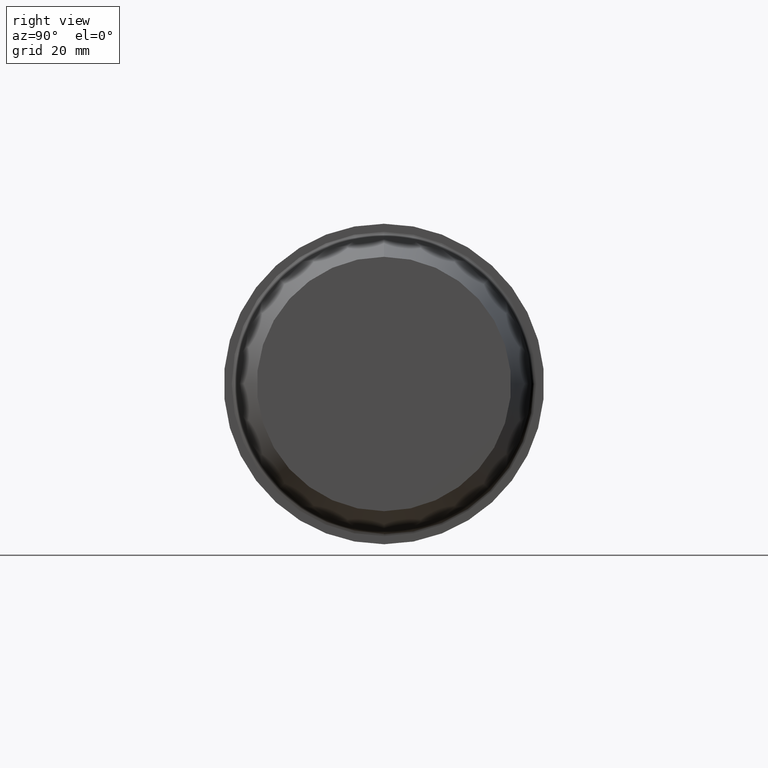
[diagram: clean part render]
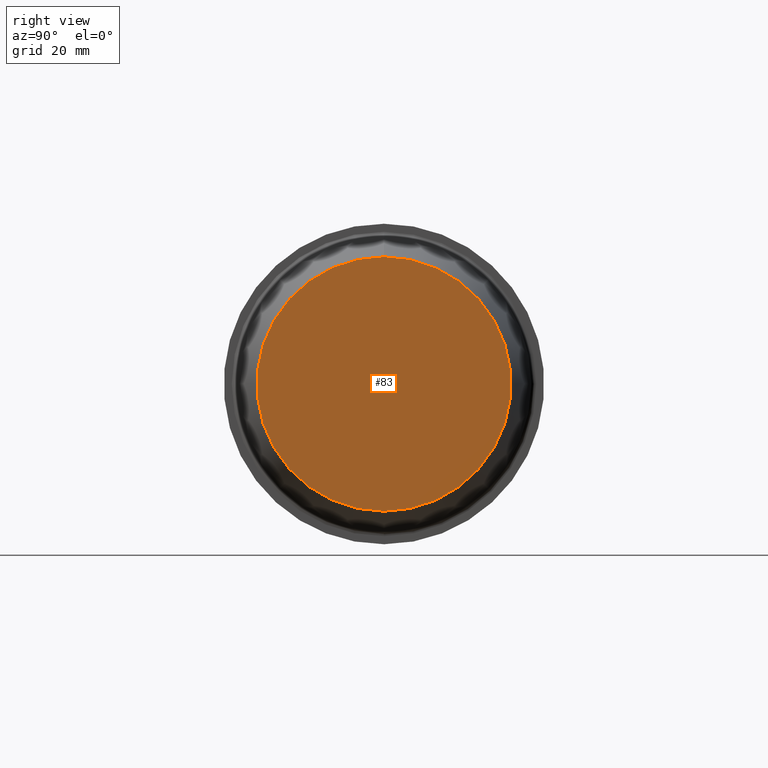
[diagram: same view with one face highlighted and labeled with its STEP entity id]
A machine part, right view. The second image highlights one B-rep face of the part: STEP entity #83.
In plain terms, the highlighted planar face has unit normal (-1, 0, 0).
Its self-contained STEP definition (entity closure, byte-faithful):
#2 = CARTESIAN_POINT ( 'NONE',  ( 74.99999992349999900, 0.000000000000000000, 0.000000000000000000 ) ) ;
#22 = AXIS2_PLACEMENT_3D ( 'NONE', #69, #124, #150 ) ;
#66 = DIRECTION ( 'NONE',  ( -1.000000000000000000, 0.000000000000000000, 0.000000000000000000 ) ) ;
#69 = CARTESIAN_POINT ( 'NONE',  ( 74.99999992349999900, 0.000000000000000000, 0.000000000000000000 ) ) ;
#83 = ADVANCED_FACE ( 'NONE', ( #267 ), #146, .F. ) ;
#90 = DIRECTION ( 'NONE',  ( 0.000000000000000000, 0.000000000000000000, 1.000000000000000000 ) ) ;
#95 = DIRECTION ( 'NONE',  ( -1.000000000000000000, 0.000000000000000000, 0.000000000000000000 ) ) ;
#107 = CIRCLE ( 'NONE', #22, 24.99999997449999967 ) ;
#116 = ORIENTED_EDGE ( 'NONE', *, *, #185, .F. ) ;
#120 = EDGE_CURVE ( 'NONE', #189, #379, #107, .T. ) ;
#124 = DIRECTION ( 'NONE',  ( -1.000000000000000000, 0.000000000000000000, 0.000000000000000000 ) ) ;
#146 = PLANE ( 'NONE',  #313 ) ;
#150 = DIRECTION ( 'NONE',  ( 0.000000000000000000, 0.000000000000000000, 1.000000000000000000 ) ) ;
#166 = EDGE_LOOP ( 'NONE', ( #281, #116 ) ) ;
#185 = EDGE_CURVE ( 'NONE', #379, #189, #354, .T. ) ;
#189 = VERTEX_POINT ( 'NONE', #349 ) ;
#197 = CARTESIAN_POINT ( 'NONE',  ( 74.99999992349999900, 0.000000000000000000, 0.000000000000000000 ) ) ;
#221 = AXIS2_PLACEMENT_3D ( 'NONE', #197, #95, #90 ) ;
#244 = CARTESIAN_POINT ( 'NONE',  ( 74.99999992349999900, 3.302272834819433089E-15, -24.99999997449999967 ) ) ;
#267 = FACE_OUTER_BOUND ( 'NONE', #166, .T. ) ;
#281 = ORIENTED_EDGE ( 'NONE', *, *, #120, .F. ) ;
#297 = DIRECTION ( 'NONE',  ( 0.000000000000000000, 0.000000000000000000, 1.000000000000000000 ) ) ;
#313 = AXIS2_PLACEMENT_3D ( 'NONE', #2, #66, #297 ) ;
#349 = CARTESIAN_POINT ( 'NONE',  ( 74.99999992349999900, 0.000000000000000000, 24.99999997449999967 ) ) ;
#354 = CIRCLE ( 'NONE', #221, 24.99999997449999967 ) ;
#379 = VERTEX_POINT ( 'NONE', #244 ) ;